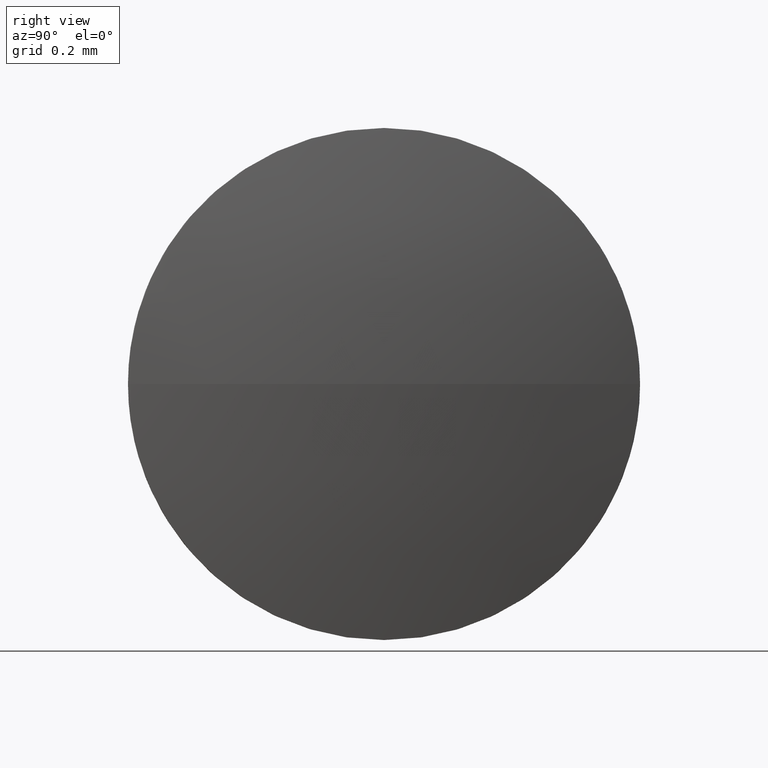
[diagram: clean part render]
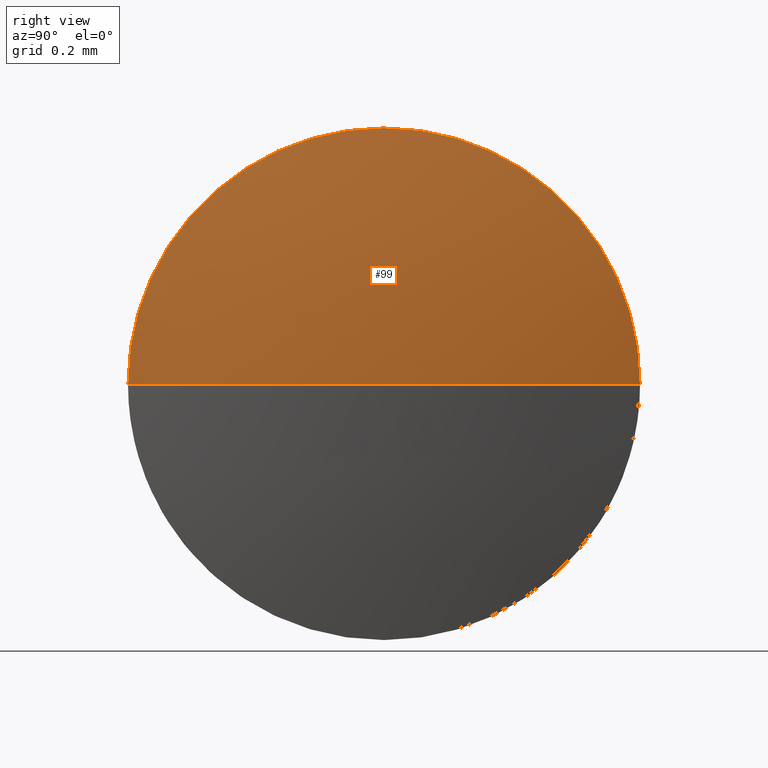
[diagram: same view with one face highlighted and labeled with its STEP entity id]
A machine part, right view. The second image highlights one B-rep face of the part: STEP entity #99.
In plain terms, the highlighted spherical surface has radius 2.5755 mm.
Its self-contained STEP definition (entity closure, byte-faithful):
#3 = EDGE_CURVE ( 'NONE', #87, #138, #28, .T. ) ;
#5 = VERTEX_POINT ( 'NONE', #165 ) ;
#10 = DIRECTION ( 'NONE',  ( 0.0000000000000000000, 0.0000000000000000000, 1.000000000000000000 ) ) ;
#12 = EDGE_CURVE ( 'NONE', #115, #138, #100, .T. ) ;
#20 = DIRECTION ( 'NONE',  ( 0.0000000000000000000, -1.000000000000000000, 0.0000000000000000000 ) ) ;
#26 = EDGE_CURVE ( 'NONE', #115, #5, #65, .T. ) ;
#28 = CIRCLE ( 'NONE', #52, 0.5000000000000004400 ) ;
#32 = CARTESIAN_POINT ( 'NONE',  ( 48.82861791711177800, 12.93295623006154700, 0.0000000000000000000 ) ) ;
#33 = ORIENTED_EDGE ( 'NONE', *, *, #174, .F. ) ;
#38 = FACE_OUTER_BOUND ( 'NONE', #176, .T. ) ;
#48 = DIRECTION ( 'NONE',  ( 0.0000000000000000000, 0.0000000000000000000, -1.000000000000000000 ) ) ;
#50 = ORIENTED_EDGE ( 'NONE', *, *, #26, .F. ) ;
#52 = AXIS2_PLACEMENT_3D ( 'NONE', #136, #137, #152 ) ;
#54 = CARTESIAN_POINT ( 'NONE',  ( 51.40413832527504200, 12.93295623006154700, 0.0000000000000000000 ) ) ;
#65 = CIRCLE ( 'NONE', #84, 2.575520408163265000 ) ;
#70 = DIRECTION ( 'NONE',  ( 0.0000000000000000000, 0.0000000000000000000, 1.000000000000000000 ) ) ;
#71 = ORIENTED_EDGE ( 'NONE', *, *, #12, .T. ) ;
#76 = AXIS2_PLACEMENT_3D ( 'NONE', #125, #112, #93 ) ;
#78 = ORIENTED_EDGE ( 'NONE', *, *, #3, .F. ) ;
#84 = AXIS2_PLACEMENT_3D ( 'NONE', #177, #48, #114 ) ;
#85 = CARTESIAN_POINT ( 'NONE',  ( 51.35513832527504300, 12.93295623006154200, 0.0000000000000000000 ) ) ;
#87 = VERTEX_POINT ( 'NONE', #181 ) ;
#93 = DIRECTION ( 'NONE',  ( 0.0000000000000000000, -1.000000000000000000, -1.224646799147353500E-016 ) ) ;
#99 = ADVANCED_FACE ( 'NONE', ( #38 ), #134, .T. ) ;
#100 = CIRCLE ( 'NONE', #76, 2.575520408163263200 ) ;
#107 = AXIS2_PLACEMENT_3D ( 'NONE', #85, #180, #70 ) ;
#112 = DIRECTION ( 'NONE',  ( 0.0000000000000000000, -1.224646799147353200E-016, 1.000000000000000000 ) ) ;
#114 = DIRECTION ( 'NONE',  ( -1.000000000000000000, 0.0000000000000000000, 0.0000000000000000000 ) ) ;
#115 = VERTEX_POINT ( 'NONE', #54 ) ;
#123 = AXIS2_PLACEMENT_3D ( 'NONE', #32, #10, #20 ) ;
#125 = CARTESIAN_POINT ( 'NONE',  ( 48.82861791711177800, 12.93295623006154700, 0.0000000000000000000 ) ) ;
#134 = SPHERICAL_SURFACE ( 'NONE', #123, 2.575520408163264100 ) ;
#135 = CARTESIAN_POINT ( 'NONE',  ( 51.35513832527504300, 13.43295623006154200, 6.123233995736726600E-017 ) ) ;
#136 = CARTESIAN_POINT ( 'NONE',  ( 51.35513832527504300, 12.93295623006154200, 0.0000000000000000000 ) ) ;
#137 = DIRECTION ( 'NONE',  ( -1.000000000000000000, -0.0000000000000000000, -0.0000000000000000000 ) ) ;
#138 = VERTEX_POINT ( 'NONE', #135 ) ;
#152 = DIRECTION ( 'NONE',  ( 0.0000000000000000000, 0.0000000000000000000, 1.000000000000000000 ) ) ;
#162 = CIRCLE ( 'NONE', #107, 0.5000000000000004400 ) ;
#165 = CARTESIAN_POINT ( 'NONE',  ( 51.35513832527504300, 12.43295623006154400, 0.0000000000000000000 ) ) ;
#174 = EDGE_CURVE ( 'NONE', #5, #87, #162, .T. ) ;
#176 = EDGE_LOOP ( 'NONE', ( #50, #71, #78, #33 ) ) ;
#177 = CARTESIAN_POINT ( 'NONE',  ( 48.82861791711177800, 12.93295623006154700, 0.0000000000000000000 ) ) ;
#180 = DIRECTION ( 'NONE',  ( -1.000000000000000000, -0.0000000000000000000, -0.0000000000000000000 ) ) ;
#181 = CARTESIAN_POINT ( 'NONE',  ( 51.35513832527504300, 12.93295623006154200, 0.5000000000000004400 ) ) ;